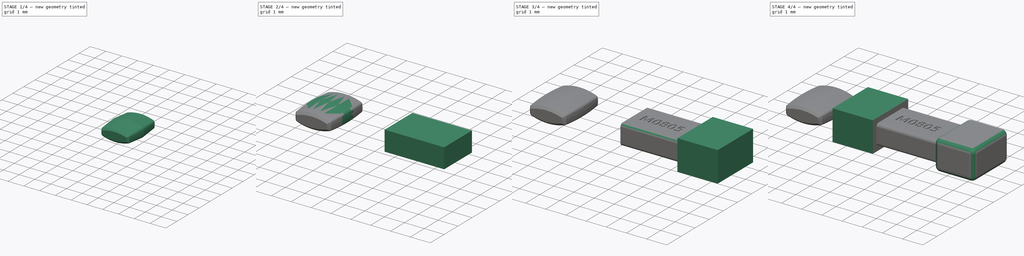
[diagram: build sequence overview — one tinted view per stage of 4, left to right]
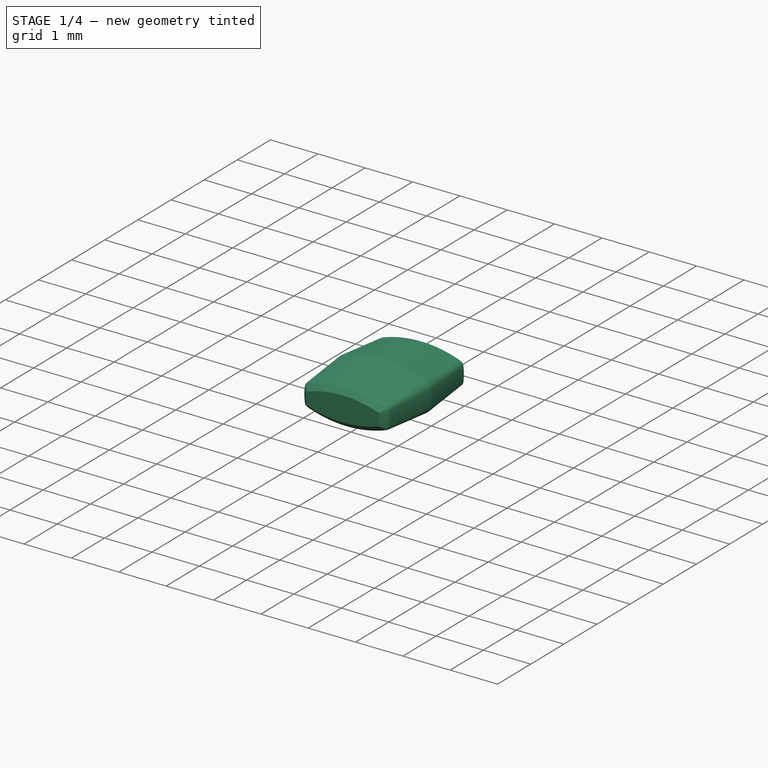
[diagram: stage 1 of 4 — iso view after this stage's code; geometry added in this stage tinted green]
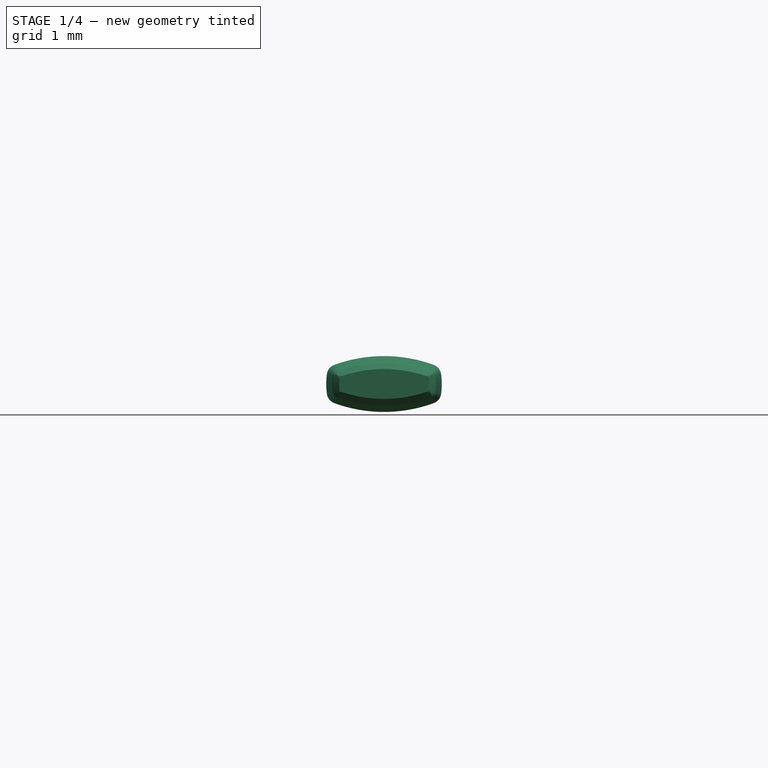
[diagram: stage 1 of 4 — front view after this stage's code; geometry added in this stage tinted green]
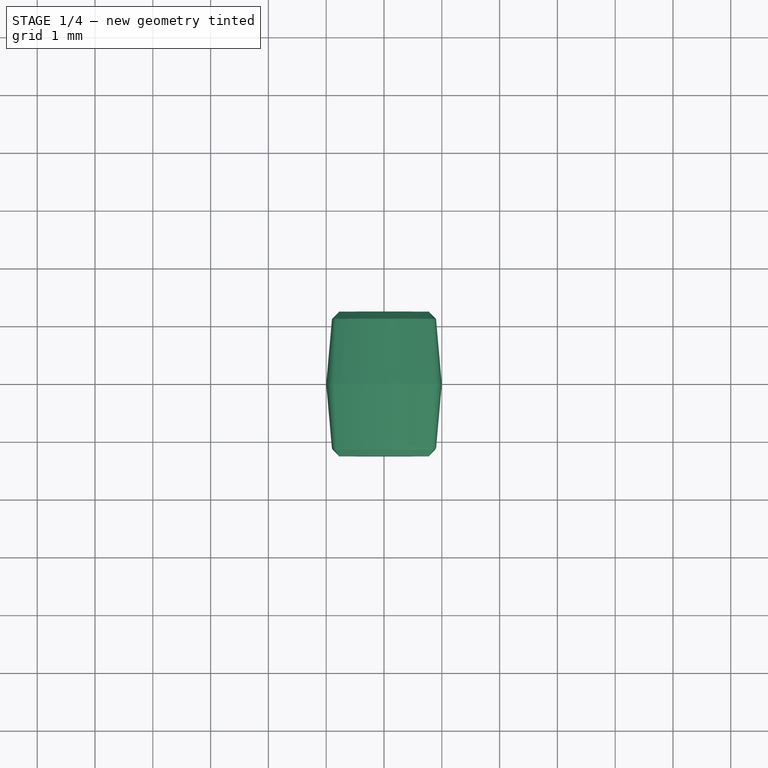
[diagram: stage 1 of 4 — top view after this stage's code; geometry added in this stage tinted green]
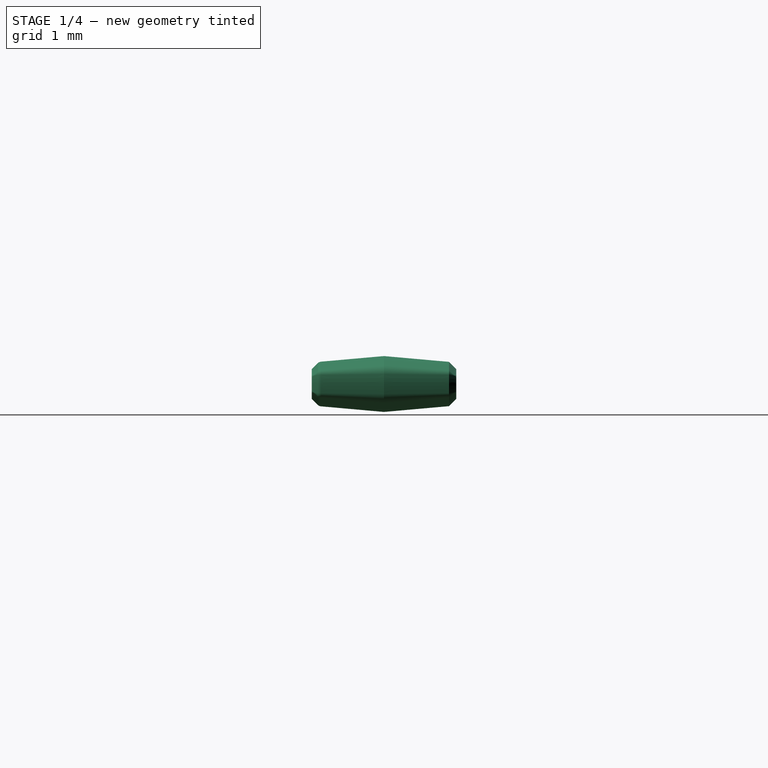
[diagram: stage 1 of 4 — right view after this stage's code; geometry added in this stage tinted green]
FCSTD DOCUMENT  (FreeCAD 0.18R16093 (Git))
Label: smt_chip
License: All rights reserved
LicenseURL: http://en.wikipedia.org/wiki/All_rights_reserved
objects: Part::Box×3, Part::Fillet×2, Sketcher::SketchObject×2, PartDesign::Fillet×2, Part::Part2DObjectPython×1, Part::Extrusion×1, Part::Cut×1, PartDesign::AdditivePipe×1, PartDesign::Body×1
note: 15 computed .brp shape members not serialized (recipe doc carries the construction recipe); baked Part::Feature solids carry a one-line shape summary decoded from their .brp

FEATURE [Sketcher::SketchObject] Sketch
  MapMode = 5
  Support = -> [XY_Plane]
  sketch-geometry (7):
    g0: LineSegment StartX=-5.5 StartY=1.25 StartZ=0 EndX=-5.5 EndY=-1.25 EndZ=0
    g1: LineSegment StartX=-5.5 StartY=-1.25 StartZ=0 EndX=-5.775 EndY=-1.25 EndZ=0
    g2: LineSegment StartX=-5.775 StartY=-1.25 StartZ=0 EndX=-5.9 EndY=-1.125 EndZ=0
    g3: LineSegment StartX=-5.9 StartY=-1.125 StartZ=0 EndX=-6 EndY=0 EndZ=0
    g4: LineSegment StartX=-6 StartY=0 StartZ=0 EndX=-5.9 EndY=1.125 EndZ=0
    g5: LineSegment StartX=-5.9 StartY=1.125 StartZ=0 EndX=-5.775 EndY=1.25 EndZ=0
    g6: LineSegment StartX=-5.775 StartY=1.25 StartZ=0 EndX=-5.5 EndY=1.25 EndZ=0
  constraints (21):
    c: Coincident(g0,g1)
    c: Coincident(g1,g2)
    c: Coincident(g2,g3)
    c: PointOnObject(g3,g-1)
    c: Coincident(g3,g4)
    c: Coincident(g4,g5)
    c: Coincident(g5,g6)
    c: Coincident(g6,g0)
    c: Symmetric(g0,g0,g-1)
    c: Symmetric(g5,g1,g-1)
    c: Symmetric(g4,g2,g-1)
    c: Equal(g4,g3)
    c: Equal(g5,g2)
    c: Equal(g6,g1)
    c: DistanceY(g0,g0) = 2.5
    c: DistanceY(g1,g5) = 2.5
    c: DistanceY(g2,g4) = 2.25
    c: Angle(g2) = 2.35619
    c: DistanceX(g3,g0) = 0.5
    c: DistanceX(g2,g0) = 0.4
    c: DistanceX(g3,g-1) = 6
FEATURE [Sketcher::SketchObject] Sketch001
  MapMode = 5
  Placement = pos=(0,0,0) rot=(1,0,0;1.5708rad)
  Support = -> [XZ_Plane]
  sketch-geometry (11):
    g0: ArcOfCircle CenterX=-4.20983 CenterY=0.143351 CenterZ=0 NormalX=0 NormalY=0 NormalZ=1 AngleXU=0 Radius=0.2 StartAngle=0.136953 EndAngle=1.2201
    g1: ArcOfCircle CenterX=-5.25 CenterY=0 CenterZ=0 NormalX=0 NormalY=0 NormalZ=1 AngleXU=0 Radius=1.25 StartAngle=6.14623 EndAngle=6.42014
    g2: ArcOfCircle CenterX=-4.20983 CenterY=-0.143351 CenterZ=0 NormalX=0 NormalY=0 NormalZ=1 AngleXU=0 Radius=0.2 StartAngle=5.06308 EndAngle=6.14623
    g3: ArcOfCircle CenterX=-5 CenterY=2.01666 CenterZ=0 NormalX=0 NormalY=0 NormalZ=1 AngleXU=0 Radius=2.5 StartAngle=4.36169 EndAngle=5.06308
    g4: ArcOfCircle CenterX=-5.79017 CenterY=-0.143351 CenterZ=0 NormalX=0 NormalY=0 NormalZ=1 AngleXU=0 Radius=0.2 StartAngle=3.27855 EndAngle=4.36169
    g5: ArcOfCircle CenterX=-4.75 CenterY=0 CenterZ=0 NormalX=0 NormalY=0 NormalZ=1 AngleXU=0 Radius=1.25 StartAngle=3.00464 EndAngle=3.27855
    g6: ArcOfCircle CenterX=-5.79017 CenterY=0.143351 CenterZ=0 NormalX=0 NormalY=0 NormalZ=1 AngleXU=0 Radius=0.2 StartAngle=1.92149 EndAngle=3.00464
    g7: ArcOfCircle CenterX=-5 CenterY=-2.01666 CenterZ=0 NormalX=0 NormalY=0 NormalZ=1 AngleXU=0 Radius=2.5 StartAngle=1.2201 EndAngle=1.92149
    g8: LineSegment [constr] StartX=-5.25 StartY=0 StartZ=0 EndX=-5 EndY=0 EndZ=0
    g9: LineSegment [constr] StartX=-4.75 StartY=0 StartZ=0 EndX=-5 EndY=0 EndZ=0
    g10: LineSegment [constr] StartX=-6.6 StartY=0.5 StartZ=0 EndX=-6.6 EndY=-0.5 EndZ=0
  constraints (32):
    c: Coincident(g7,g0) = -1.5708
    c: Tangent(g0,g1) = -1.5708
    c: Tangent(g1,g2) = -1.5708
    c: Tangent(g2,g3) = -1.5708
    c: Tangent(g3,g4) = -1.5708
    c: Tangent(g4,g5) = -1.5708
    c: Tangent(g5,g6) = -1.5708
    c: Tangent(g6,g7) = -1.5708
    c: Radius(g2) = 0.2
    c: Radius(g0) = 0.2
    c: Radius(g6) = 0.2
    c: Radius(g4) = 0.2
    c: Radius(g7) = 2.5
    c: Radius(g3) = 2.5
    c: Radius(g5) = 1.25
    c: Radius(g1) = 1.25
    c: DistanceY(g-1,g1) = 0
    c: DistanceY(g5,g-1) = 0
    c: DistanceX(g7,g3) = 0
    c: Symmetric(g3,g7,g-1)
    c: DistanceY(g0,g6) = 0
    c: DistanceY(g3,g2) = 0
    c: DistanceX(g1,g5) = 0.5
    c: Horizontal(g8)
    c: Coincident(g9,g8)
    c: Horizontal(g9)
    c: Equal(g8,g9)
    c: Coincident(g5,g9)
    c: Coincident(g1,g8)
    c: DistanceX(g8,g-1) = 5
    c: Vertical(g10)
    c: DistanceY(g10,g10) = 1
FEATURE [PartDesign::AdditivePipe] AdditivePipe
  AuxilleryCurvelinear = true
  AuxillerySpineTangent = true
  Binormal = (0,0,0)
  Midplane = true
  Mode = 0
  Profile = -> Sketch
  Refine = true
  Reversed = true
  Spine = -> Sketch001 [Edge2,Edge1,Edge8,Edge7,Edge6,Edge5,Edge4,Edge3]
  SpineTangent = true
  Transformation = 0
  Transition = 2
FEATURE [PartDesign::Fillet] Fillet003
  Base = -> AdditivePipe [Edge9,Edge109,Edge97,Edge83,Edge27,Edge41]
  BaseFeature = -> AdditivePipe
  Radius = 0.1
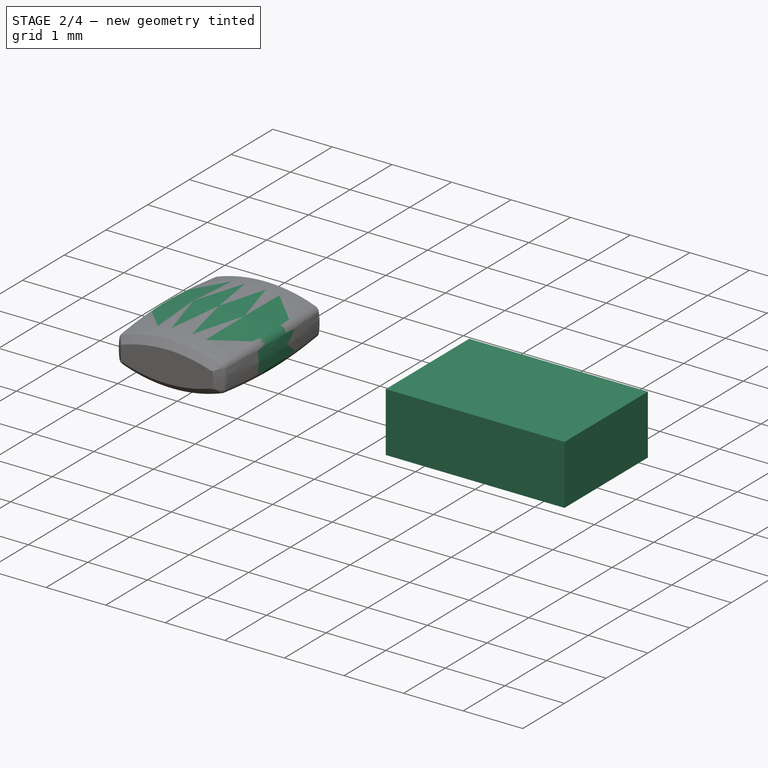
[diagram: stage 2 of 4 — iso view after this stage's code; geometry added in this stage tinted green]
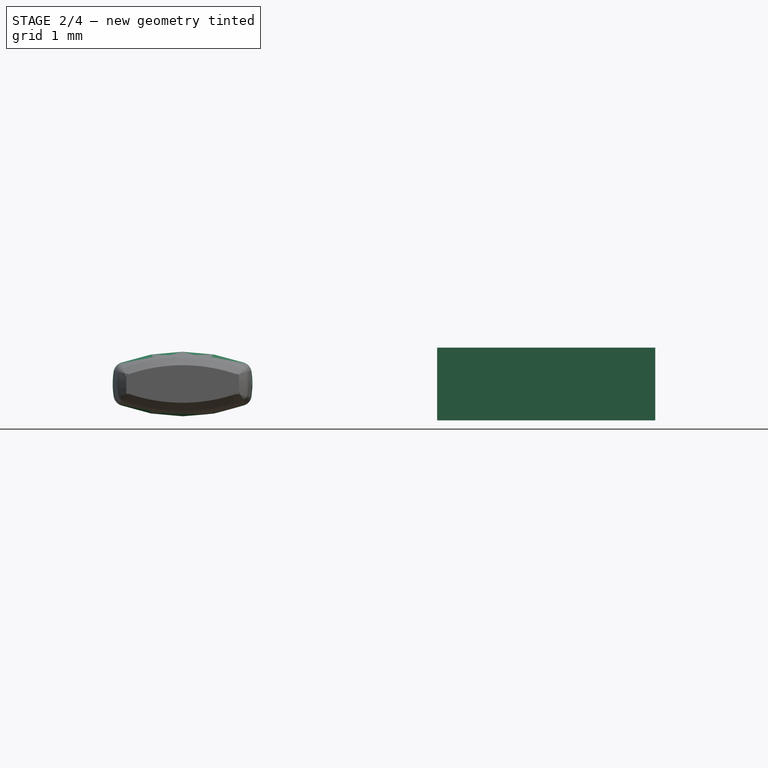
[diagram: stage 2 of 4 — front view after this stage's code; geometry added in this stage tinted green]
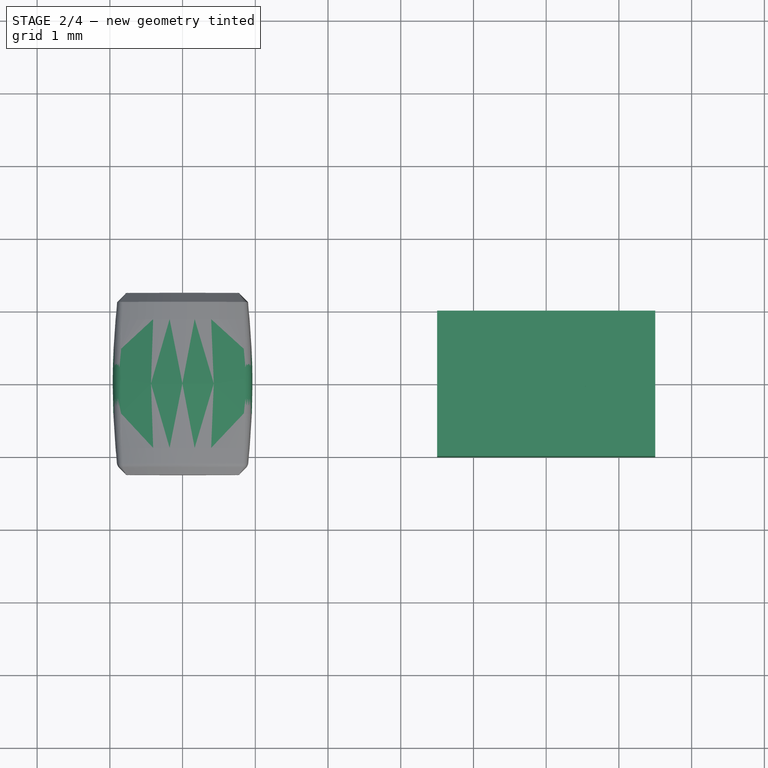
[diagram: stage 2 of 4 — top view after this stage's code; geometry added in this stage tinted green]
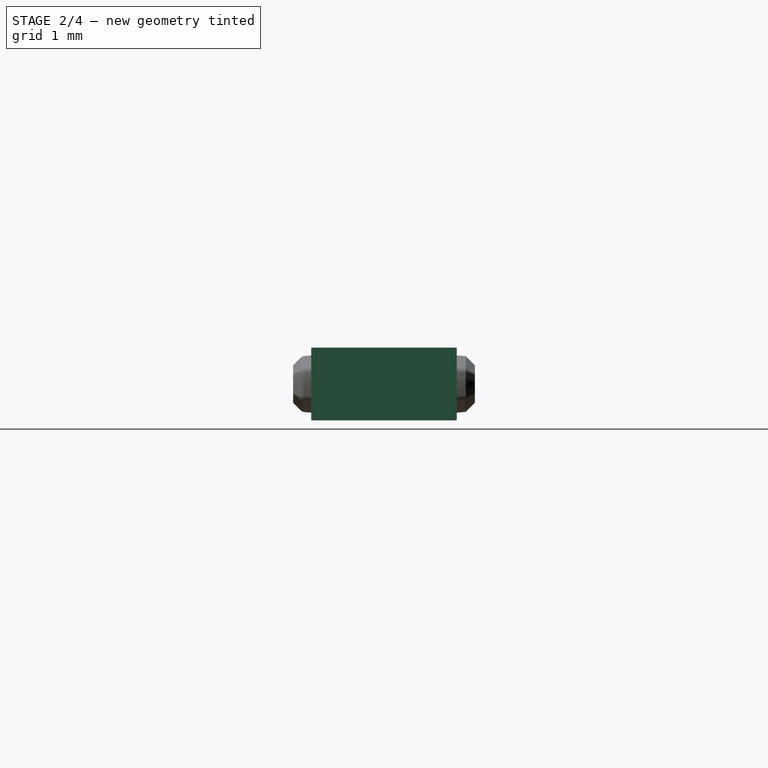
[diagram: stage 2 of 4 — right view after this stage's code; geometry added in this stage tinted green]
FEATURE [Part::Box] Box  label="Cube"
  AttacherType = Attacher::AttachEngine3D
  Height = 1
  Length = 3
  Placement = pos=(-1.5,-1,-0.5) rot=(0,0,1;0rad)
  Width = 2
FEATURE [Part::Part2DObjectPython] ShapeString  # Draft 2D object (typed FeaturePython)
  FontFile = <path>
  Placement = pos=(-1.15,-0.25,0.5) rot=(0,0,1;0rad)
  Size = 0.25
  String = M0805
  Tracking = 0
FEATURE [Part::Extrusion] Extrude
  Base = -> ShapeString
  Dir = (0,0,1)
  DirMode = 2
  FaceMakerClass = Part::FaceMakerBullseye
  LengthFwd = 0.05
  LengthRev = 0
  Reversed = true
  Solid = true
  Symmetric = false
FEATURE [PartDesign::Fillet] Fillet004
  Base = -> Fillet003 [Edge27]
  BaseFeature = -> Fillet003
  Radius = 10
FEATURE [PartDesign::Body] Body
  Group = -> [Sketch,Sketch001,AdditivePipe,Fillet003,Fillet004]
  Origin = -> Origin
  Tip = -> Fillet004
note: 1 file-system path scrubbed to <path> (originals preserved in the JSON sidecar)
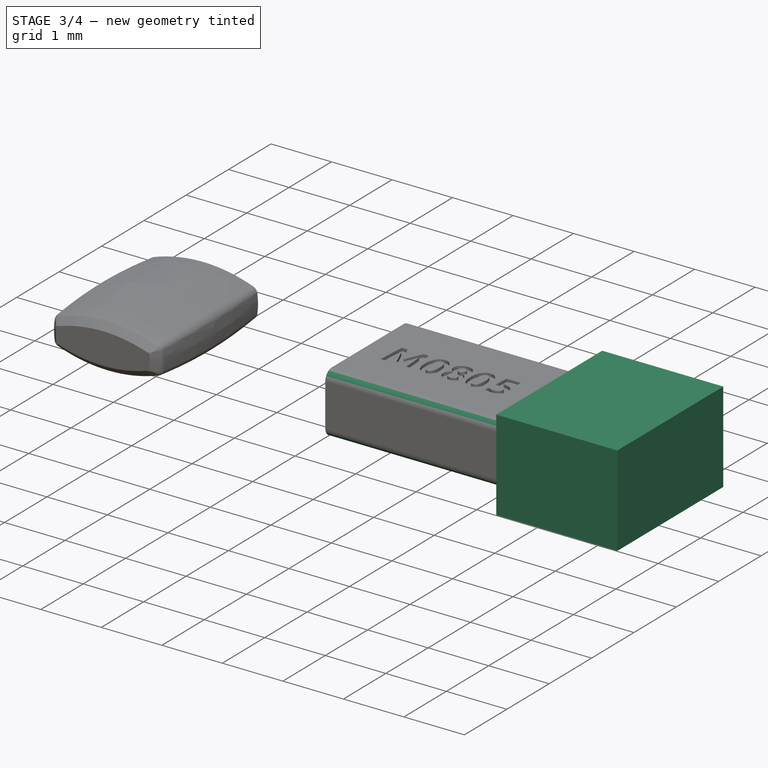
[diagram: stage 3 of 4 — iso view after this stage's code; geometry added in this stage tinted green]
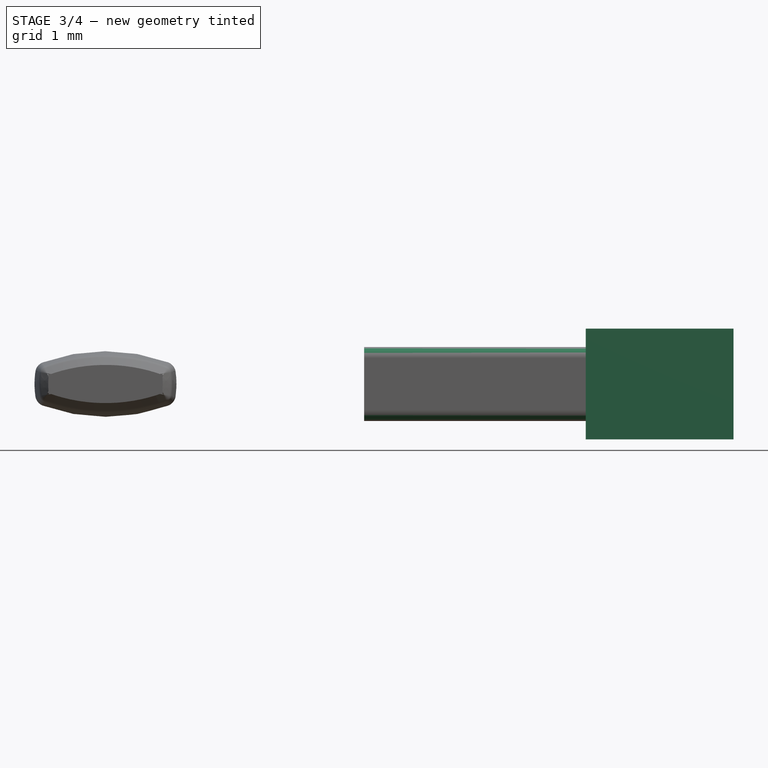
[diagram: stage 3 of 4 — front view after this stage's code; geometry added in this stage tinted green]
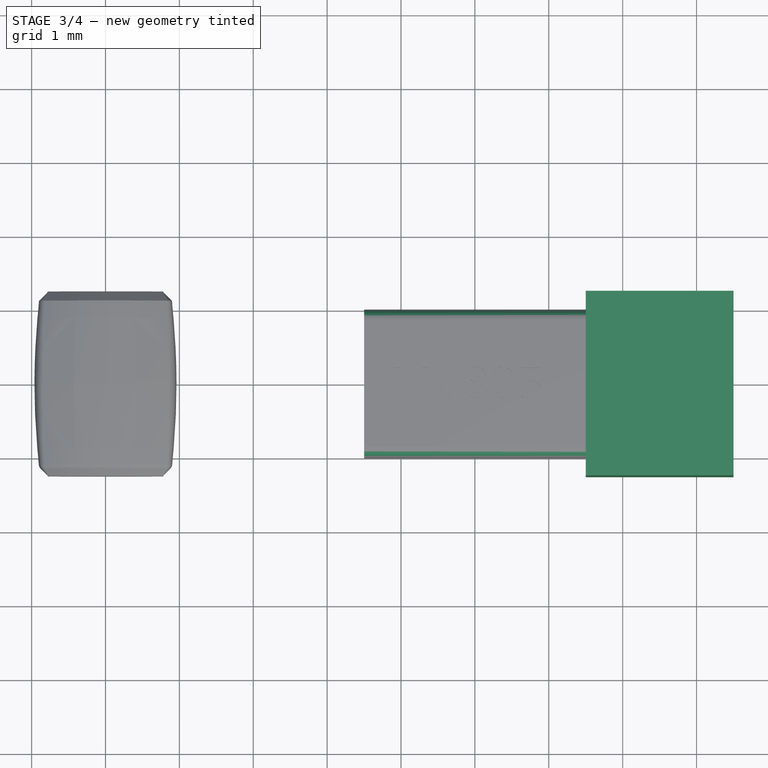
[diagram: stage 3 of 4 — top view after this stage's code; geometry added in this stage tinted green]
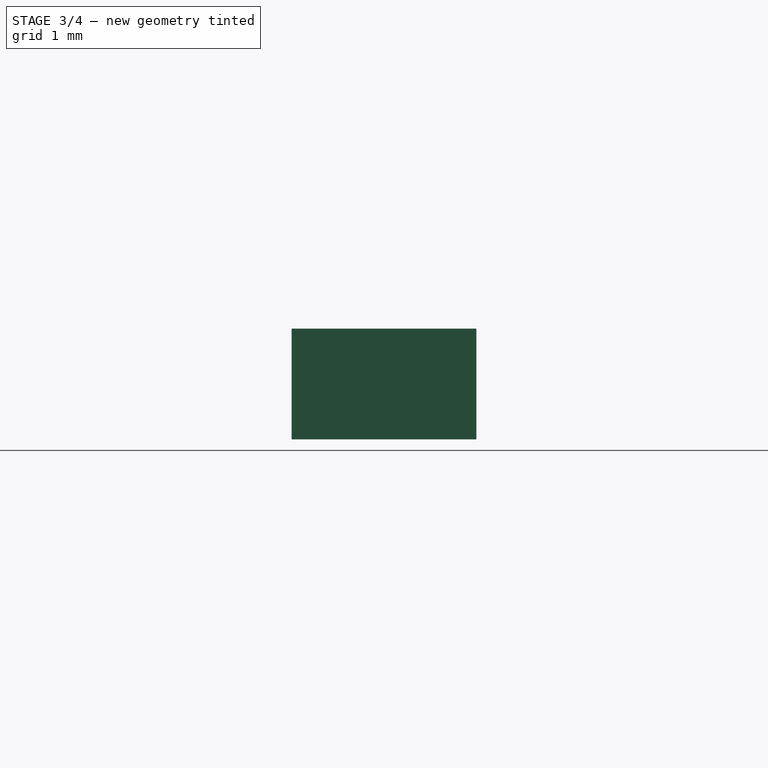
[diagram: stage 3 of 4 — right view after this stage's code; geometry added in this stage tinted green]
FEATURE [Part::Box] Box002  label="Cube002"
  AttacherType = Attacher::AttachEngine3D
  Height = 1.5
  Length = 2
  Placement = pos=(1.5,-1.25,-0.75) rot=(0,0,1;0rad)
  Width = 2.5
FEATURE [Part::Fillet] Fillet
  Base = -> Box
  Edges = 4 edges r=0.15: [Edge9,Edge10,Edge11,Edge12]
FEATURE [Part::Cut] Cut
  Base = -> Fillet
  Refine = true
  Tool = -> Extrude
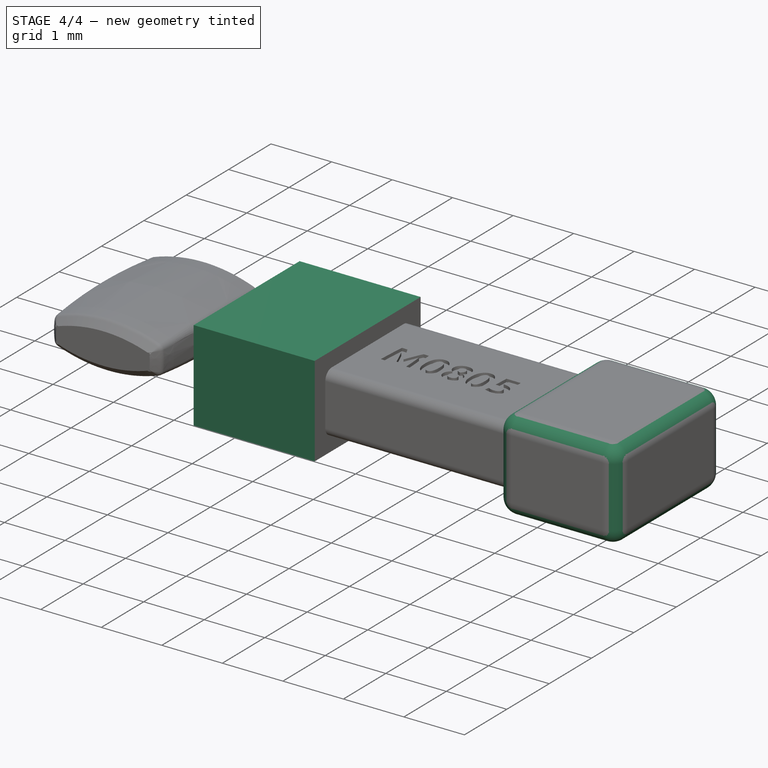
[diagram: stage 4 of 4 — iso view after this stage's code; geometry added in this stage tinted green]
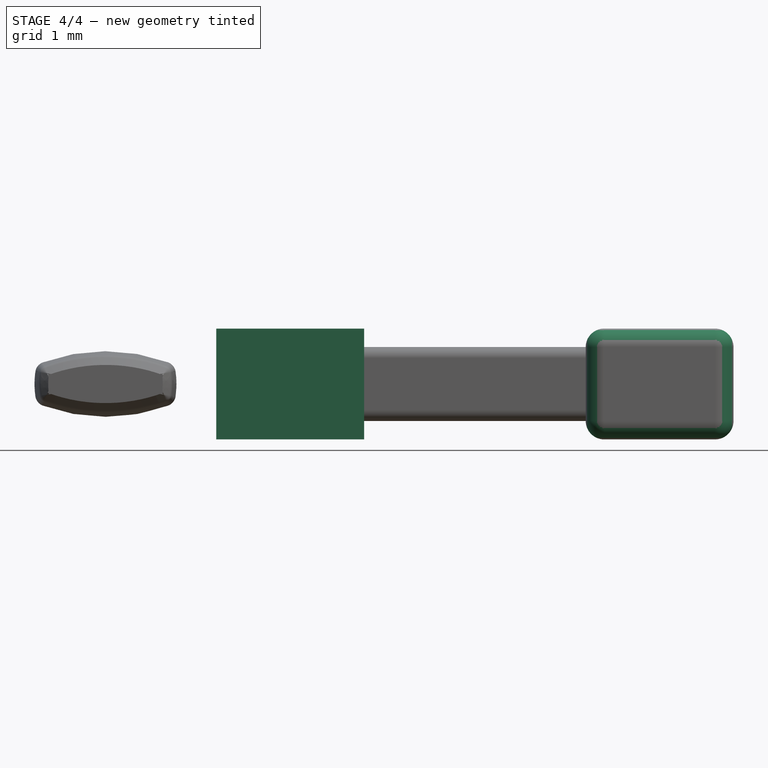
[diagram: stage 4 of 4 — front view after this stage's code; geometry added in this stage tinted green]
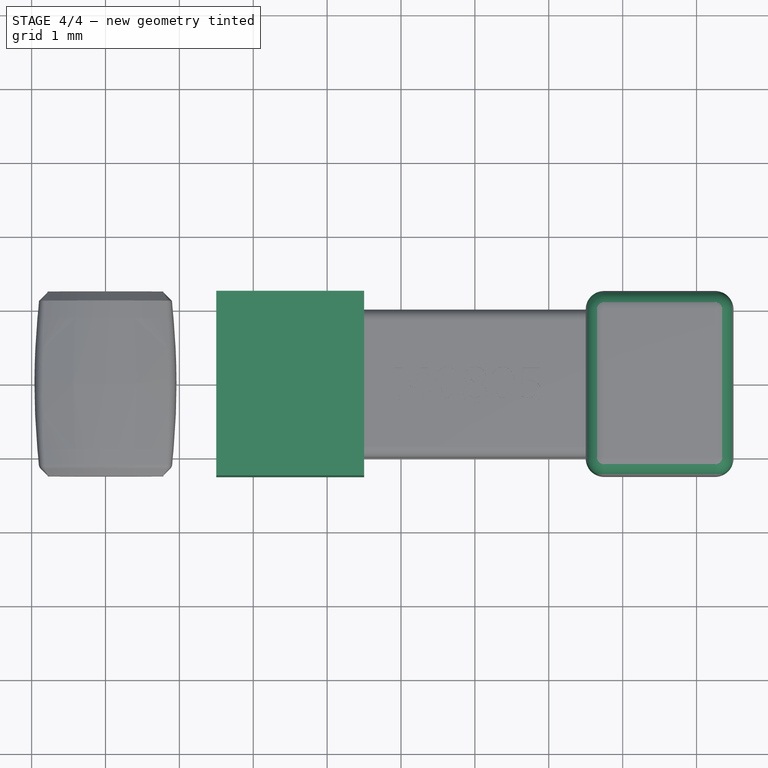
[diagram: stage 4 of 4 — top view after this stage's code; geometry added in this stage tinted green]
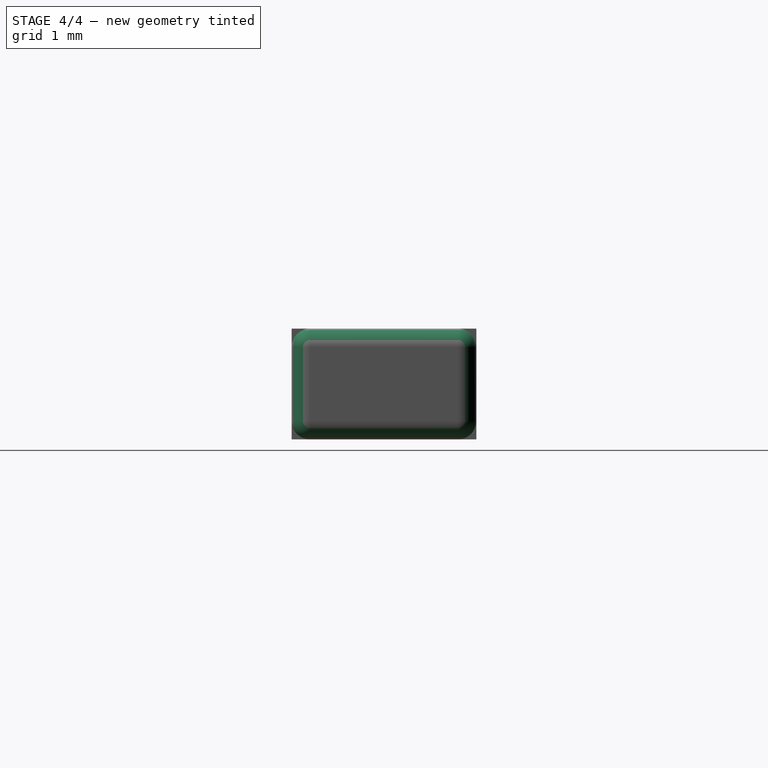
[diagram: stage 4 of 4 — right view after this stage's code; geometry added in this stage tinted green]
FEATURE [Part::Box] Box001  label="Cube001"
  AttacherType = Attacher::AttachEngine3D
  Height = 1.5
  Length = 2
  Placement = pos=(-3.5,-1.25,-0.75) rot=(0,0,1;0rad)
  Width = 2.5
FEATURE [Part::Fillet] Fillet002
  Base = -> Box002
  Edges = 12 edges r=0.25: [Edge1,Edge2,Edge3,Edge4,Edge5,Edge6,Edge7,Edge8,Edge9,Edge10,Edge11,Edge12]
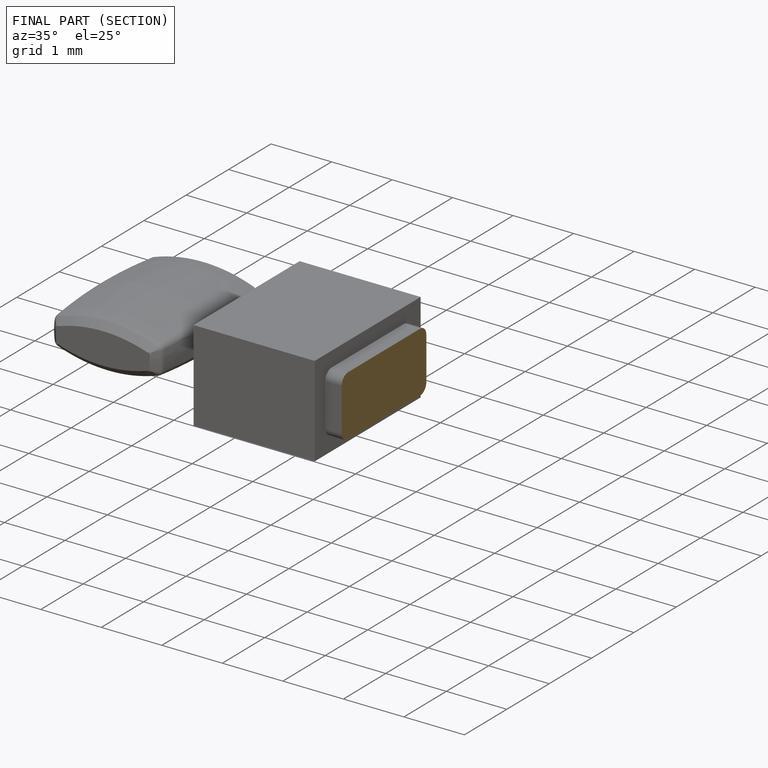
[diagram: finished part — half-section view (interior)]
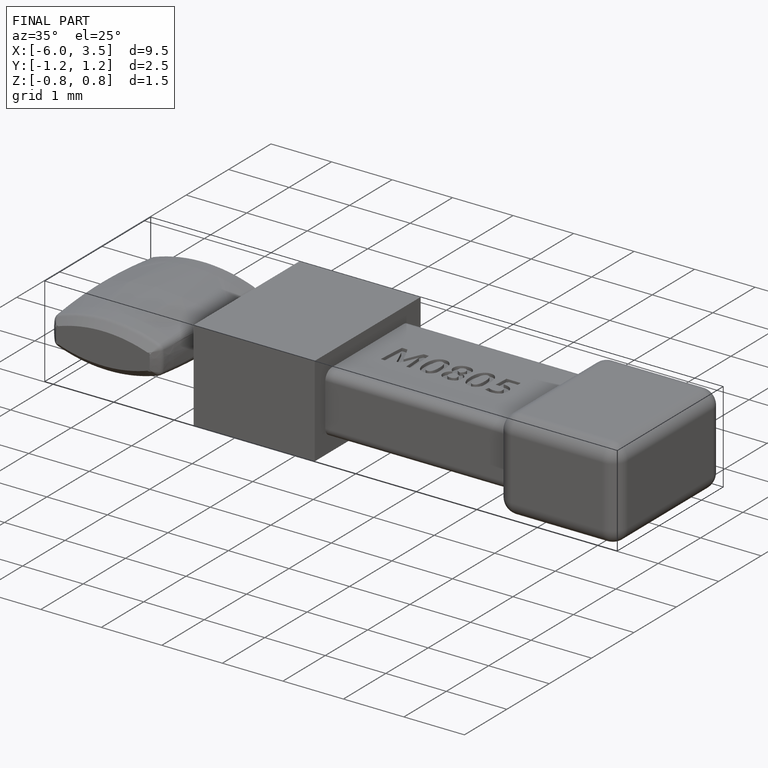
[diagram: finished part — iso view with bounding-box wireframe]
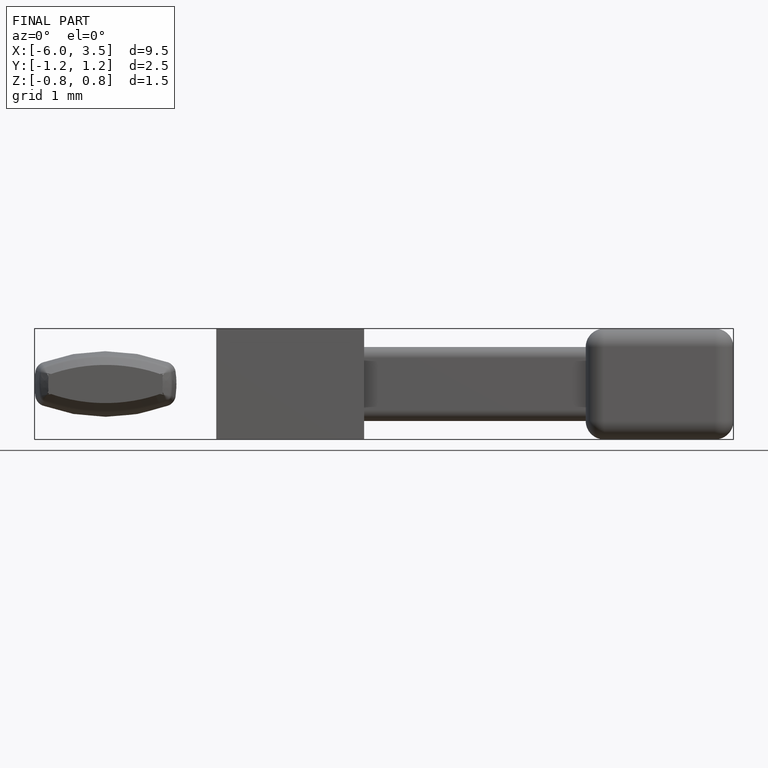
[diagram: finished part — front view with bounding-box wireframe]
